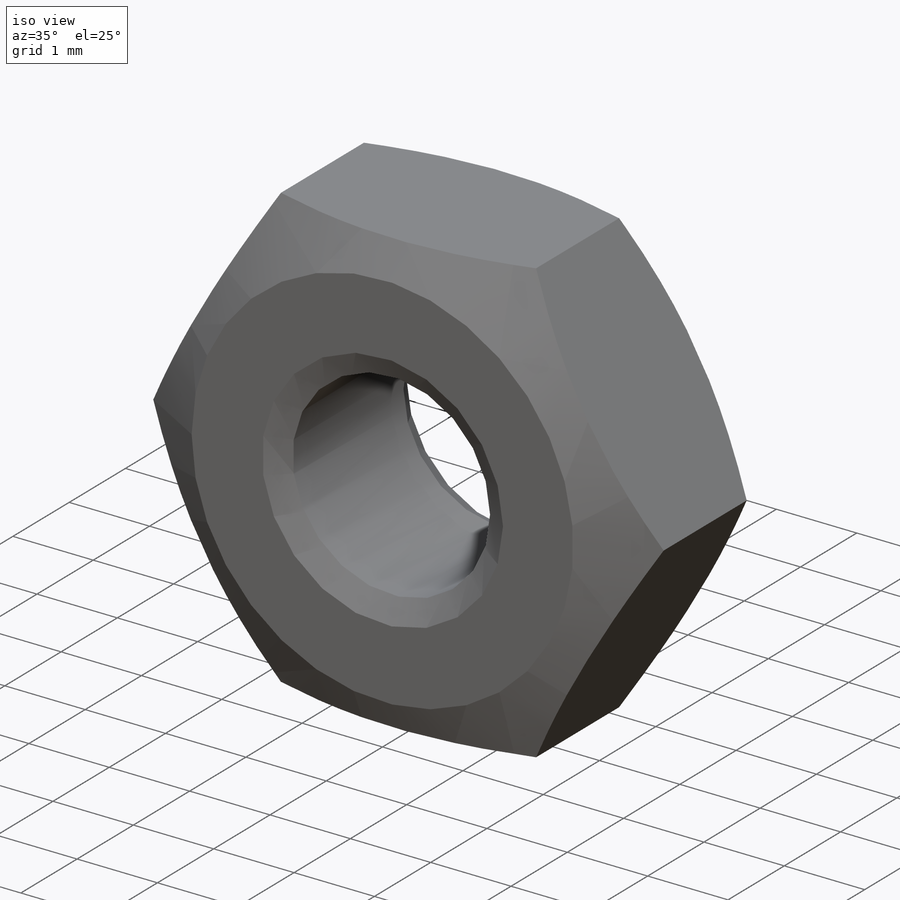
[diagram: iso view]
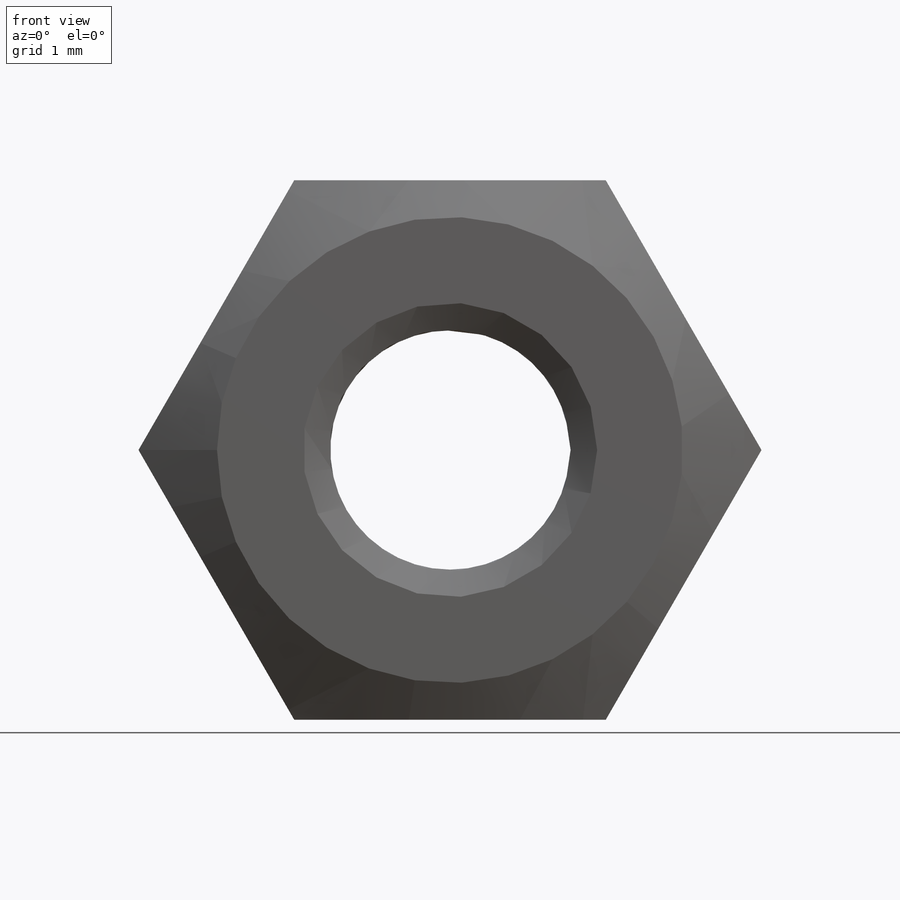
[diagram: front view]
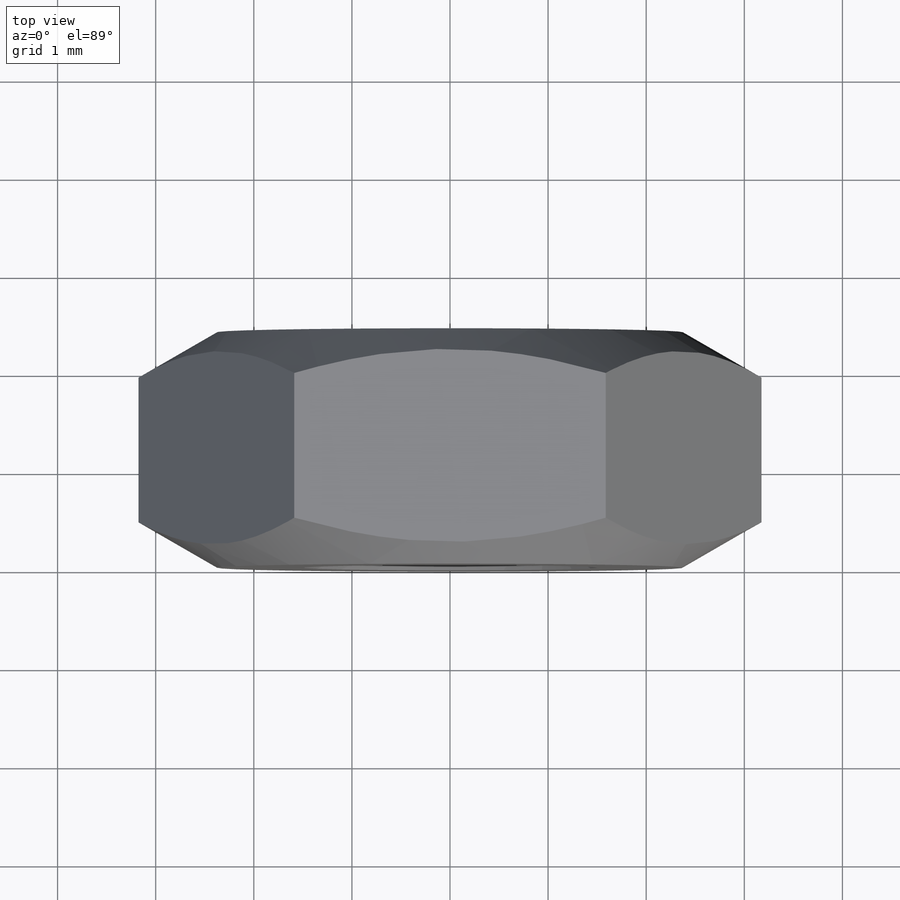
[diagram: top view]
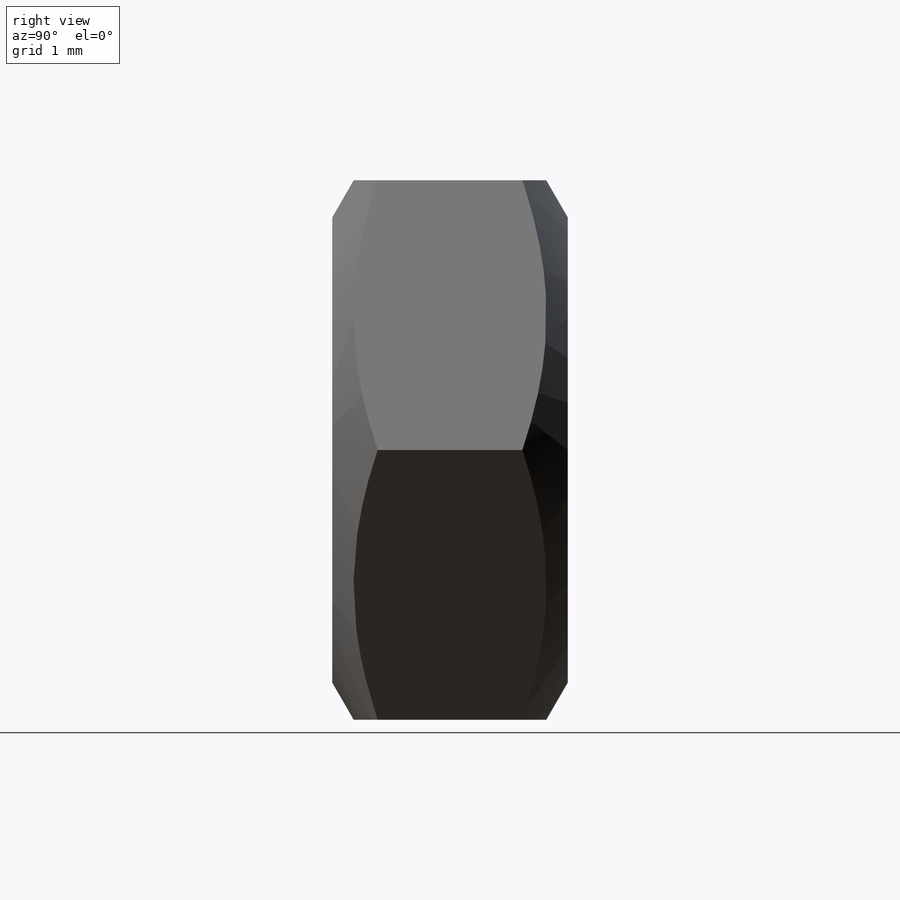
[diagram: right view]
SOLIDWORKS PART (.sldprt)
format: sldprt  version: not decoded by parser v0  size: 419,840 bytes
history: native  units: mm
features: sketch x3, cut_revolve x2, material x1, extrude x1, thread x1, chamfer x1, pattern_linear x1 (+13 scaffold rows collapsed)
feature tree (23):
  scaffold x13  (default folders/planes/origin — collapsed)
  material  "材质 <未指定>"
  sketch  "Sketch1"  dims[D=2.459mm s=5.5mm 长径尺寸e=~27.712813mm]
  extrude  "BaseNut"  [1 undecoded]
  thread  "ThreadCosmetic1"  Diameter=3mm D=3mm m=2.4mm  [1 undecoded]
  sketch  "Sketch2"  dims[c1.dw=4.75mm c1.D2=~1.739344mm c2.D2=20.0deg c2.纵向尺寸=~1.115703mm c3.D2=4.0mm c3.D1=~2.231406mm c4.D1=30.0deg c4.D2=1.2mm]
  cut_revolve  "Double-Chamfer"  Angle=360deg
  chamfer  "EndChamfer"  Distance=0.2705mm Angle=30deg
  sketch  "Sketch3"  dims[D1=0.2705mm D2=2.459mm]
  cut_revolve  "Cut-Revolve10"  Angle=360deg
  pattern_linear  "LPattern10"  Count1=7 Count2=1 Spacing1=0.3246mm Spacing2=50mm
decode coverage: 8 of 9 modeling features carry decoded parameters
note: ~ marks probable driven/reference dimensions
note: 2 parameter values undecoded
note: suppression state not decoded; provenance and decode notes live in map.json
